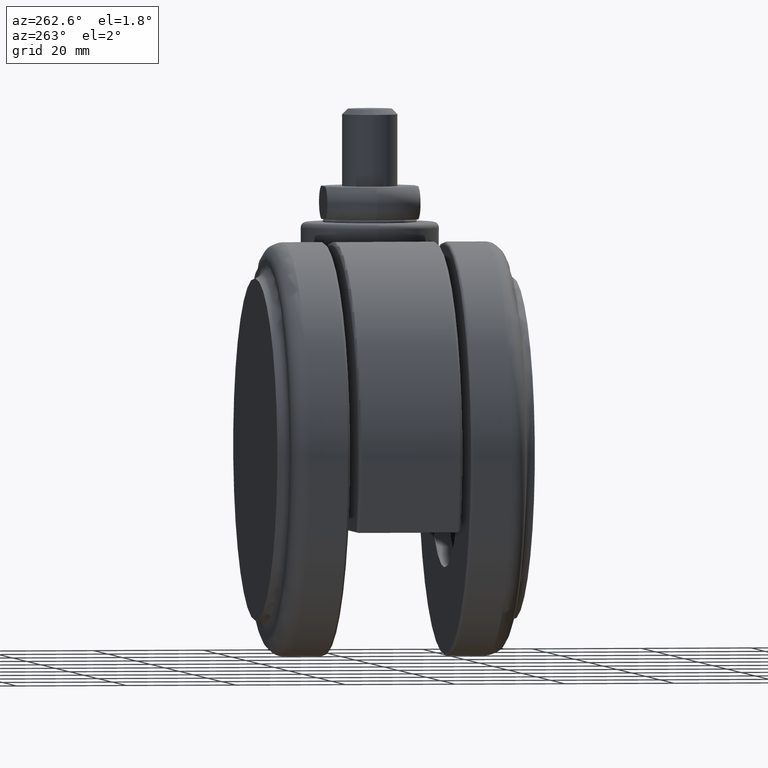
[diagram: clean part render]
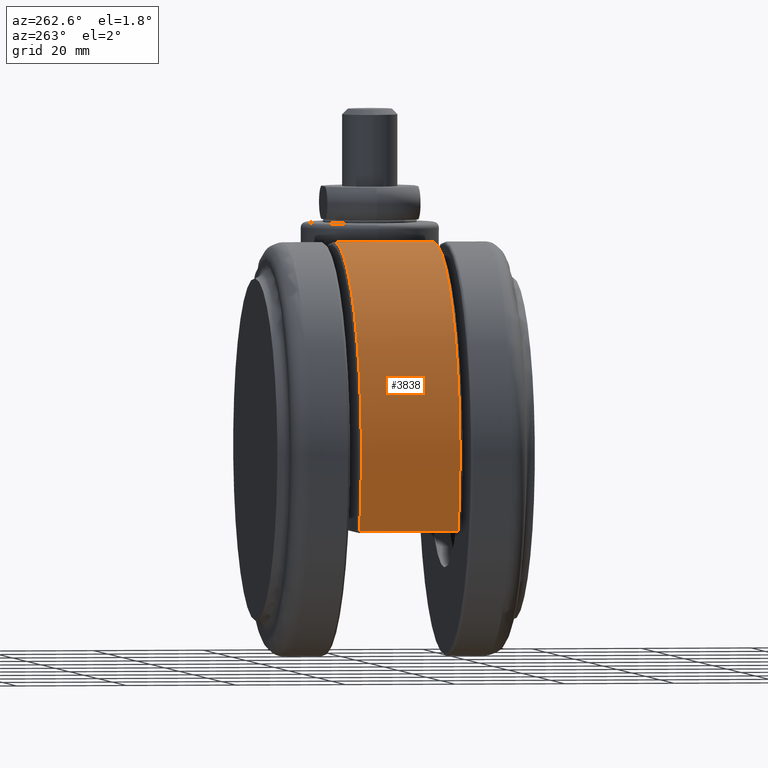
[diagram: same view with one face highlighted and labeled with its STEP entity id]
A machine part, auxiliary view. The second image highlights one B-rep face of the part: STEP entity #3838.
In plain terms, the highlighted cylindrical surface (partial cylindrical patch) has radius 37.5 mm, axis along (0, -1, 0).
Its self-contained STEP definition (entity closure, byte-faithful):
#1 = VERTEX_POINT ( 'NONE', #429 ) ;
#111 = EDGE_CURVE ( 'NONE', #3757, #1604, #883, .T. ) ;
#133 = B_SPLINE_CURVE_WITH_KNOTS ( 'NONE', 3,
 ( #1203, #1799, #3354, #2421, #2730, #3044, #3061, #3937, #3646, #2112, #1215, #1517, #609, #905, #1502, #1805 ),
 .UNSPECIFIED., .F., .F.,
 ( 4, 2, 2, 2, 2, 2, 2, 4 ),
 ( 0.01083297000393782300, 0.01209086360940814100, 0.01334875721487845800, 0.01586454442581909300, 0.01712243803128940900, 0.01838033163675972500, 0.01963822524223004400, 0.02089611884770036000 ),
 .UNSPECIFIED. ) ;
#142 = CARTESIAN_POINT ( 'NONE',  ( -11.65766593866017000, -4.530314039475490200, -3.939311114517211700 ) ) ;
#179 = CARTESIAN_POINT ( 'NONE',  ( -11.32877515779916800, -5.299412595533453000, -4.015916222165394300 ) ) ;
#189 = CARTESIAN_POINT ( 'NONE',  ( -11.14504601772913600, -5.675801001144079400, -4.059861759056297500 ) ) ;
#229 = EDGE_CURVE ( 'NONE', #2008, #1, #3574, .T. ) ;
#357 = ORIENTED_EDGE ( 'NONE', *, *, #1920, .T. ) ;
#360 = CARTESIAN_POINT ( 'NONE',  ( -54.86951361419750100, 0.0000000000000000000, -54.29735555493609700 ) ) ;
#368 = CARTESIAN_POINT ( 'NONE',  ( -10.51517581383509300, -6.771638203603449900, -4.218482085273332200 ) ) ;
#429 = CARTESIAN_POINT ( 'NONE',  ( -12.50000000000000000, 2.995251654553703900E-014, -3.757653858252425000 ) ) ;
#453 = CARTESIAN_POINT ( 'NONE',  ( -9.802904443546696100, -7.800582663888066600, -4.409683149507409400 ) ) ;
#461 = EDGE_LOOP ( 'NONE', ( #1168, #3766, #719, #759, #1792, #357 ) ) ;
#476 = DIRECTION ( 'NONE',  ( 0.0000000000000000000, 0.0000000000000000000, -1.000000000000000000 ) ) ;
#527 = LINE ( 'NONE', #360, #1852 ) ;
#609 = CARTESIAN_POINT ( 'NONE',  ( -9.794559992498440300, 7.777407367369056200, -4.414310978766519800 ) ) ;
#685 = CARTESIAN_POINT ( 'NONE',  ( -11.80282795274265500, -4.137603731906472700, -3.906654837730500200 ) ) ;
#702 = CARTESIAN_POINT ( 'NONE',  ( -10.73847770299704000, -6.411853426593876500, -4.161066474243648700 ) ) ;
#719 = ORIENTED_EDGE ( 'NONE', *, *, #2897, .T. ) ;
#759 = ORIENTED_EDGE ( 'NONE', *, *, #2390, .T. ) ;
#780 = CARTESIAN_POINT ( 'NONE',  ( -20.00000000000045100, 0.0000000000000000000, -40.50000000000000000 ) ) ;
#802 = CARTESIAN_POINT ( 'NONE',  ( -12.49999999999999800, -0.8407722689415021400, -3.757653858252426800 ) ) ;
#883 = CIRCLE ( 'NONE', #1454, 37.50000000000000000 ) ;
#905 = CARTESIAN_POINT ( 'NONE',  ( -9.258363189833458400, 8.408577873207479000, -4.570274193610124800 ) ) ;
#913 = DIRECTION ( 'NONE',  ( 0.0000000000000000000, -1.000000000000000000, 0.0000000000000000000 ) ) ;
#1012 = DIRECTION ( 'NONE',  ( 0.0000000000000000000, 1.000000000000000000, 0.0000000000000000000 ) ) ;
#1092 = VERTEX_POINT ( 'NONE', #1294 ) ;
#1122 = CARTESIAN_POINT ( 'NONE',  ( -20.00000000000045100, -8.999999999999799300, -3.000000000000002700 ) ) ;
#1168 = ORIENTED_EDGE ( 'NONE', *, *, #229, .T. ) ;
#1203 = CARTESIAN_POINT ( 'NONE',  ( -12.50000000000000000, 2.995251654553703900E-014, -3.757653858252425000 ) ) ;
#1215 = CARTESIAN_POINT ( 'NONE',  ( -10.51789632378315200, 6.767247206361606300, -4.217783199591902000 ) ) ;
#1285 = DIRECTION ( 'NONE',  ( 0.0000000000000000000, -1.000000000000000000, 0.0000000000000000000 ) ) ;
#1294 = CARTESIAN_POINT ( 'NONE',  ( -54.86951361419750100, 9.000000000000199000, -54.29735555493609700 ) ) ;
#1333 = AXIS2_PLACEMENT_3D ( 'NONE', #780, #3529, #476 ) ;
#1365 = AXIS2_PLACEMENT_3D ( 'NONE', #2831, #1012, #3149 ) ;
#1445 = EDGE_CURVE ( 'NONE', #1, #2951, #133, .T. ) ;
#1454 = AXIS2_PLACEMENT_3D ( 'NONE', #2204, #2277, #2514 ) ;
#1502 = CARTESIAN_POINT ( 'NONE',  ( -8.972938191872776400, 8.712518925962278600, -4.656565500695855100 ) ) ;
#1517 = CARTESIAN_POINT ( 'NONE',  ( -10.04652675849994200, 7.449099134835352100, -4.344254723362667800 ) ) ;
#1604 = VERTEX_POINT ( 'NONE', #1122 ) ;
#1792 = ORIENTED_EDGE ( 'NONE', *, *, #111, .T. ) ;
#1799 = CARTESIAN_POINT ( 'NONE',  ( -12.50000000000000000, 0.4198857714410683100, -3.757653858252427700 ) ) ;
#1805 = CARTESIAN_POINT ( 'NONE',  ( -8.674675786448538900, 9.000000000000230900, -4.751055519667010800 ) ) ;
#1852 = VECTOR ( 'NONE', #1285, 1000.000000000000000 ) ;
#1920 = EDGE_CURVE ( 'NONE', #1604, #2008, #2527, .T. ) ;
#2008 = VERTEX_POINT ( 'NONE', #3191 ) ;
#2050 = CYLINDRICAL_SURFACE ( 'NONE', #1333, 37.50000000000000000 ) ;
#2112 = CARTESIAN_POINT ( 'NONE',  ( -10.73730232612175200, 6.413705260039230400, -4.161370447469451500 ) ) ;
#2204 = CARTESIAN_POINT ( 'NONE',  ( -20.00000000000045100, -8.999999999999799300, -40.50000000000000000 ) ) ;
#2234 = CARTESIAN_POINT ( 'NONE',  ( -54.86951361419750100, -8.999999999999799300, -54.29735555493609700 ) ) ;
#2277 = DIRECTION ( 'NONE',  ( 0.0000000000000000000, 1.000000000000000000, 0.0000000000000000000 ) ) ;
#2388 = CIRCLE ( 'NONE', #3897, 37.50000000000000000 ) ;
#2390 = EDGE_CURVE ( 'NONE', #1092, #3757, #527, .T. ) ;
#2421 = CARTESIAN_POINT ( 'NONE',  ( -12.39317029340259800, 1.685029787549746400, -3.779596173792669300 ) ) ;
#2514 = DIRECTION ( 'NONE',  ( 0.0000000000000000000, 0.0000000000000000000, 1.000000000000000000 ) ) ;
#2527 = CIRCLE ( 'NONE', #1365, 37.50000000000000000 ) ;
#2720 = CARTESIAN_POINT ( 'NONE',  ( -20.00000000000045100, 9.000000000000199000, -40.50000000000000000 ) ) ;
#2730 = CARTESIAN_POINT ( 'NONE',  ( -12.32874735431087700, 2.104418142397915100, -3.792924973968794700 ) ) ;
#2831 = CARTESIAN_POINT ( 'NONE',  ( -20.00000000000045100, -8.999999999999799300, -40.50000000000000000 ) ) ;
#2861 = CARTESIAN_POINT ( 'NONE',  ( -8.674675786448901200, -8.999999999999809900, -4.751055519666890000 ) ) ;
#2897 = EDGE_CURVE ( 'NONE', #2951, #1092, #2388, .T. ) ;
#2951 = VERTEX_POINT ( 'NONE', #3065 ) ;
#3044 = CARTESIAN_POINT ( 'NONE',  ( -12.07499608784259600, 3.339284003571599600, -3.846566198035183500 ) ) ;
#3052 = DIRECTION ( 'NONE',  ( 0.0000000000000000000, 0.0000000000000000000, -1.000000000000000000 ) ) ;
#3061 = CARTESIAN_POINT ( 'NONE',  ( -11.82515094896099400, 4.138176200578661800, -3.900311104676254200 ) ) ;
#3065 = CARTESIAN_POINT ( 'NONE',  ( -8.674675786448538900, 9.000000000000230900, -4.751055519667010800 ) ) ;
#3149 = DIRECTION ( 'NONE',  ( 0.0000000000000000000, 0.0000000000000000000, 1.000000000000000000 ) ) ;
#3175 = CARTESIAN_POINT ( 'NONE',  ( -12.05401286481520300, -3.335758711177920300, -3.851291589132261400 ) ) ;
#3191 = CARTESIAN_POINT ( 'NONE',  ( -8.674675786448901200, -8.999999999999809900, -4.751055519666890000 ) ) ;
#3354 = CARTESIAN_POINT ( 'NONE',  ( -12.47890053855938700, 0.8408547169093227900, -3.761941011588097300 ) ) ;
#3529 = DIRECTION ( 'NONE',  ( 0.0000000000000000000, -1.000000000000000000, 0.0000000000000000000 ) ) ;
#3541 = CARTESIAN_POINT ( 'NONE',  ( -12.50000000000000000, 2.995251654553703900E-014, -3.757653858252425000 ) ) ;
#3574 = B_SPLINE_CURVE_WITH_KNOTS ( 'NONE', 3,
 ( #2861, #3836, #453, #368, #702, #189, #179, #142, #685, #3175, #3774, #3710, #802, #3541 ),
 .UNSPECIFIED., .F., .F.,
 ( 4, 2, 2, 2, 2, 2, 4 ),
 ( 0.0007578292614578130900, 0.003276614447077814200, 0.004536007039887815200, 0.005795399632697815700, 0.007054792225507816200, 0.008314184818317818500, 0.01083297000393782300 ),
 .UNSPECIFIED. ) ;
#3646 = CARTESIAN_POINT ( 'NONE',  ( -11.14238452377035500, 5.680892846167517400, -4.060512983454700000 ) ) ;
#3691 = FACE_OUTER_BOUND ( 'NONE', #461, .T. ) ;
#3710 = CARTESIAN_POINT ( 'NONE',  ( -12.41604507323763200, -1.677237000265646300, -3.774477651932344200 ) ) ;
#3757 = VERTEX_POINT ( 'NONE', #2234 ) ;
#3766 = ORIENTED_EDGE ( 'NONE', *, *, #1445, .T. ) ;
#3774 = CARTESIAN_POINT ( 'NONE',  ( -12.16031509086136700, -2.925245578562813500, -3.828527006093505500 ) ) ;
#3836 = CARTESIAN_POINT ( 'NONE',  ( -9.267378490791253800, -8.428721800230761100, -4.563286331331251100 ) ) ;
#3838 = ADVANCED_FACE ( 'NONE', ( #3691 ), #2050, .T. ) ;
#3897 = AXIS2_PLACEMENT_3D ( 'NONE', #2720, #913, #3052 ) ;
#3937 = CARTESIAN_POINT ( 'NONE',  ( -11.32890675711923300, 5.299343921343998800, -4.015880330838450100 ) ) ;